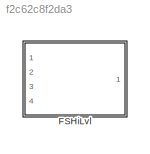
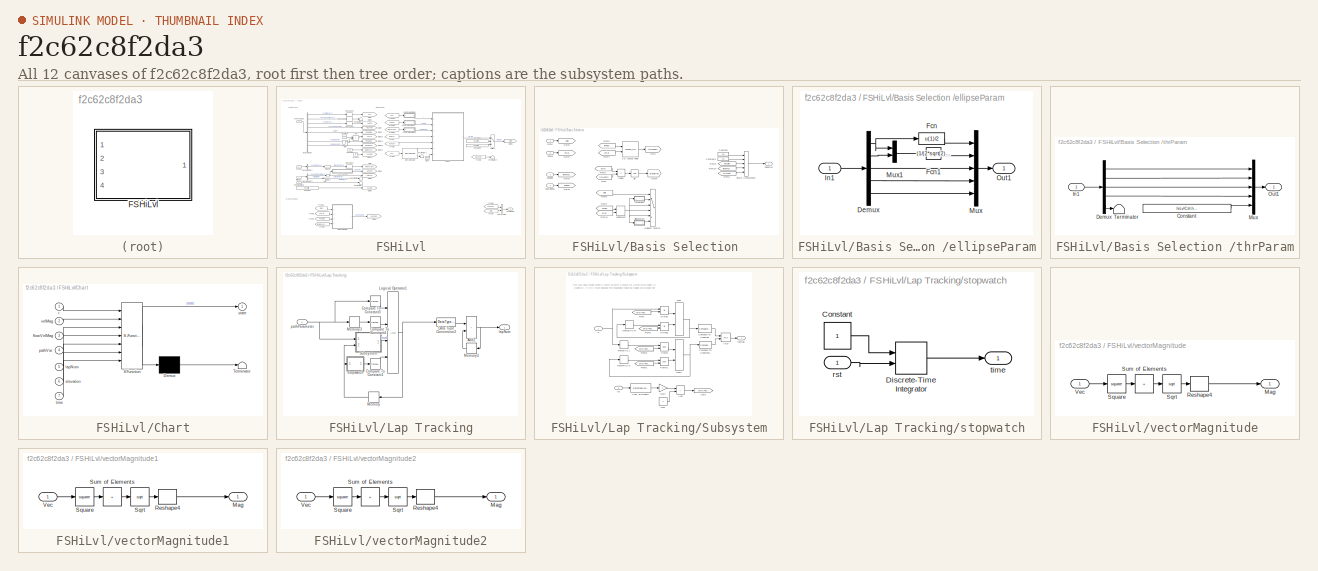
[diagram: thumbnail index - all 12 canvases of the model, root first then tree order]
MODEL slx_f2c62c8f2da3
KIND library
CONFIG AbsTol = auto
CONFIG EnableMultiTasking = off
CONFIG FixedStep = auto
CONFIG MaxStep = auto
CONFIG MinStep = auto
CONFIG RelTol = 1e-3
CONFIG SampleTimeConstraint = Unconstrained
CONFIG SolverName = VariableStepAuto
CONFIG StartTime = 0.0
CONFIG StopTime = 10.0
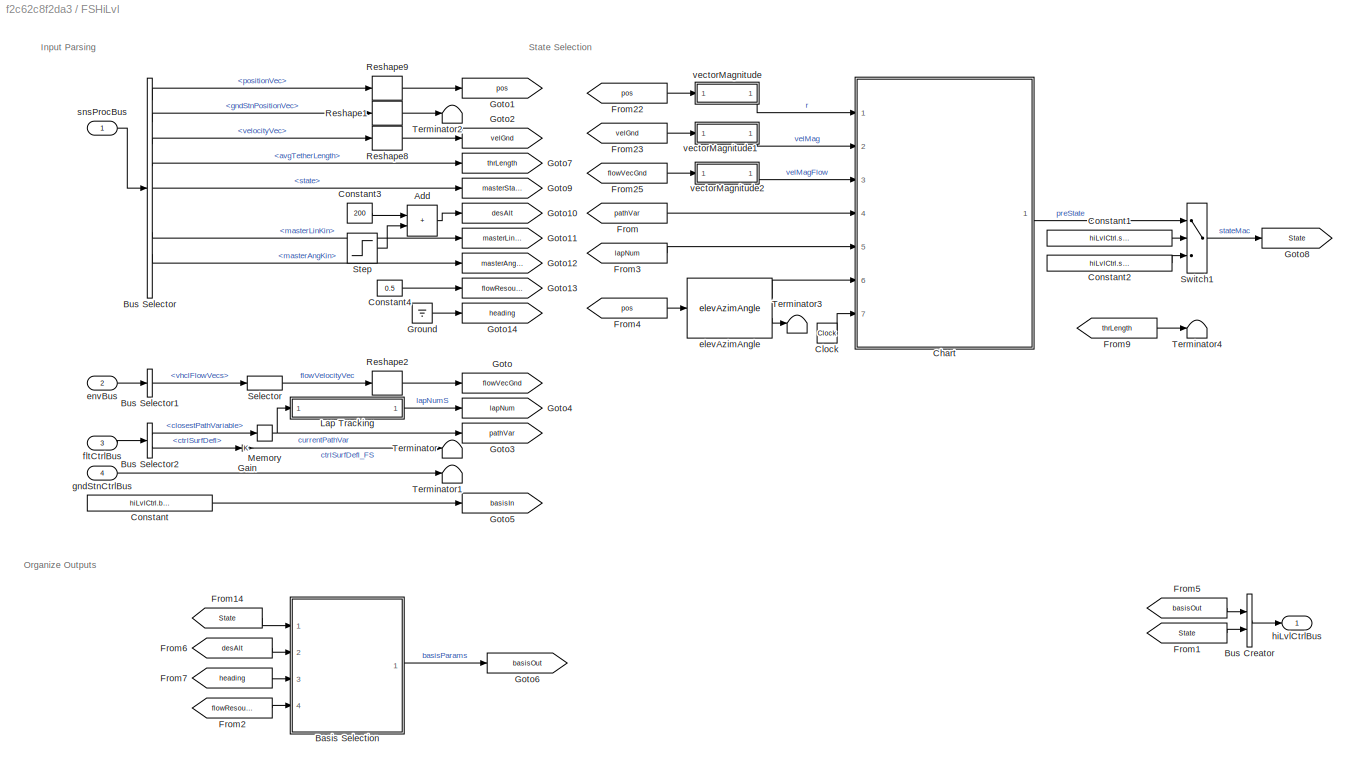
BLOCK [SubSystem] FSHiLvl
  InitFcn = initializeBussesFromBlock(gcb)
  LoadFcn = initializeBussesFromBlock(gcb)
  Ports = [4, 1]
  RequestExecContextInheritance = off
  StartFcn = initializeBussesFromBlock(gcb)
  VariantControl = strcmpi(HILVLCONTROLLER,'mantaFSHiLvl')
BLOCK [Sum] FSHiLvl/Add
  IconShape = rectangular
  Ports = [2, 1]
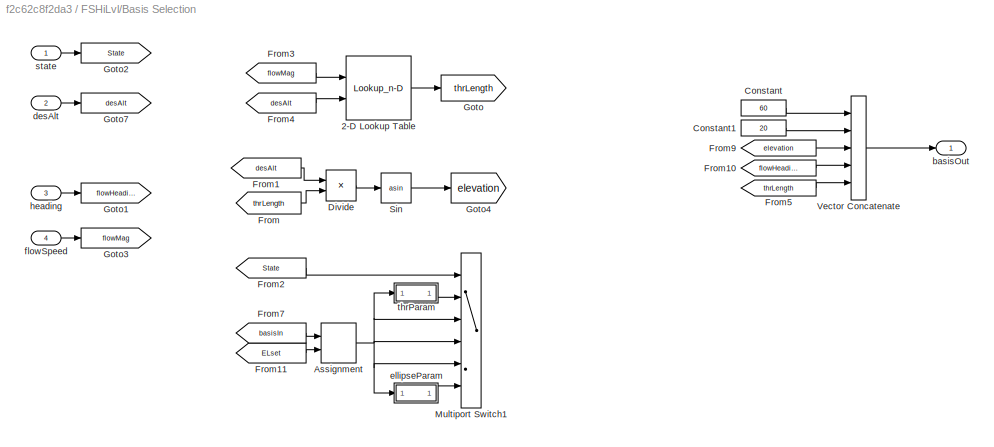
BLOCK [SubSystem] FSHiLvl/Basis Selection 
  Ports = [4, 1]
  RequestExecContextInheritance = off
BLOCK [Lookup_n-D] FSHiLvl/Basis Selection /2-D Lookup Table
  BreakpointsForDimension1 = hiLvlCtrl.flwSpdRef.Value
  BreakpointsForDimension2 = hiLvlCtrl.desisredAlt.Value
  InputPortMap = u0,u1
  InternalRulePriority = Speed
  Ports = [2, 1]
  RndMeth = Simplest
  Table = hiLvlCtrl.thrLength.Value
BLOCK [Assignment] FSHiLvl/Basis Selection /Assignment
  Commented = on
  DiagnosticForDimensions = Warning
  IndexOptions = Index vector (dialog)
  Indices = 3
  OutputSizes = 1
  Ports = [2, 1]
BLOCK [Constant] FSHiLvl/Basis Selection /Constant
  Value = 60
BLOCK [Constant] FSHiLvl/Basis Selection /Constant1
  Value = 20
BLOCK [Product] FSHiLvl/Basis Selection /Divide
  Inputs = */
  Ports = [2, 1]
BLOCK [From] FSHiLvl/Basis Selection /From
  GotoTag = thrLength
BLOCK [From] FSHiLvl/Basis Selection /From1
  GotoTag = desAlt
BLOCK [From] FSHiLvl/Basis Selection /From10
  GotoTag = flowHeading
BLOCK [From] FSHiLvl/Basis Selection /From11
  Commented = on
  GotoTag = ELset
BLOCK [From] FSHiLvl/Basis Selection /From2
  Commented = on
  GotoTag = State
BLOCK [From] FSHiLvl/Basis Selection /From3
  GotoTag = flowMag
BLOCK [From] FSHiLvl/Basis Selection /From4
  GotoTag = desAlt
BLOCK [From] FSHiLvl/Basis Selection /From5
  GotoTag = thrLength
BLOCK [From] FSHiLvl/Basis Selection /From7
  Commented = on
  GotoTag = basisIn
BLOCK [From] FSHiLvl/Basis Selection /From9
  GotoTag = elevation
BLOCK [Goto] FSHiLvl/Basis Selection /Goto
  GotoTag = thrLength
BLOCK [Goto] FSHiLvl/Basis Selection /Goto1
  GotoTag = flowHeading
BLOCK [Goto] FSHiLvl/Basis Selection /Goto2
  GotoTag = State
BLOCK [Goto] FSHiLvl/Basis Selection /Goto3
  GotoTag = flowMag
BLOCK [Goto] FSHiLvl/Basis Selection /Goto4
  GotoTag = elevation
BLOCK [Goto] FSHiLvl/Basis Selection /Goto7
  GotoTag = desAlt
BLOCK [MultiPortSwitch] FSHiLvl/Basis Selection /Multiport Switch1
  Commented = on
  InputSameDT = off
  Inputs = 5
  Ports = [6, 1]
  SaturateOnIntegerOverflow = off
BLOCK [Trigonometry] FSHiLvl/Basis Selection /Sin
  Operator = asin
  Ports = [1, 1]
BLOCK [Concatenate] FSHiLvl/Basis Selection /Vector Concatenate
  NumInputs = 5
  Ports = [5, 1]
BLOCK [Outport] FSHiLvl/Basis Selection /basisOut
BLOCK [Inport] FSHiLvl/Basis Selection /desAlt
  Port = 2
BLOCK [SubSystem] FSHiLvl/Basis Selection /ellipseParam
  Commented = on
  Ports = [1, 1]
  RequestExecContextInheritance = off
BLOCK [Demux] FSHiLvl/Basis Selection /ellipseParam/Demux
  Outputs = 5
  Ports = [1, 5]
BLOCK [Fcn] FSHiLvl/Basis Selection /ellipseParam/Fcn
  Expr = u(1)/2
BLOCK [Fcn] FSHiLvl/Basis Selection /ellipseParam/Fcn1
  Expr = (1/(2*sqrt(2)))*sqrt(-u(1)^2+sqrt((u(2)^2*(4+u(2)^2)*u(1)^4))/(u(2)^2))
BLOCK [Inport] FSHiLvl/Basis Selection /ellipseParam/In1
BLOCK [Mux] FSHiLvl/Basis Selection /ellipseParam/Mux
  DisplayOption = bar
  Inputs = 5
  Ports = [5, 1]
BLOCK [Mux] FSHiLvl/Basis Selection /ellipseParam/Mux1
  DisplayOption = bar
  Inputs = 2
  Ports = [2, 1]
BLOCK [Outport] FSHiLvl/Basis Selection /ellipseParam/Out1
BLOCK [Inport] FSHiLvl/Basis Selection /flowSpeed
  Port = 4
BLOCK [Inport] FSHiLvl/Basis Selection /heading
  Port = 3
BLOCK [Inport] FSHiLvl/Basis Selection /state
BLOCK [SubSystem] FSHiLvl/Basis Selection /thrParam
  Commented = on
  Ports = [1, 1]
  RequestExecContextInheritance = off
BLOCK [Constant] FSHiLvl/Basis Selection /thrParam/Constant
  Value = hiLvlCtrl.harvestingThrLength.Value
BLOCK [Demux] FSHiLvl/Basis Selection /thrParam/Demux
  Outputs = 5
  Ports = [1, 5]
BLOCK [Inport] FSHiLvl/Basis Selection /thrParam/In1
BLOCK [Mux] FSHiLvl/Basis Selection /thrParam/Mux
  DisplayOption = bar
  Inputs = 5
  Ports = [5, 1]
BLOCK [Outport] FSHiLvl/Basis Selection /thrParam/Out1
BLOCK [Terminator] FSHiLvl/Basis Selection /thrParam/Terminator
BLOCK [BusCreator] FSHiLvl/Bus Creator
  DisplayOption = bar
  InheritFromInputs = on
  Inputs = 2
  OutDataTypeStr = Bus: hiLvlCtrlBus
  Ports = [2, 1]
BLOCK [BusSelector] FSHiLvl/Bus Selector
  OutputSignals = positionVec,gndStnPositionVec,velocityVec,avgTetherLength,state,desAlt,masterLinKin,masterAngKin,flowResource
  Ports = [1, 9]
BLOCK [BusSelector] FSHiLvl/Bus Selector1
  OutputSignals = vhclFlowVecs
  Ports = [1, 1]
BLOCK [BusSelector] FSHiLvl/Bus Selector2
  OutputSignals = closestPathVariable,ctrlSurfDefl
  Ports = [1, 2]
BLOCK [SubSystem] FSHiLvl/Chart
  Commented = on
  ErrorFcn = Stateflow.Translate.translate
  PermitHierarchicalResolution = ExplicitOnly
  Ports = [7, 1]
  RequestExecContextInheritance = off
  SFBlockType = Chart
  TreatAsAtomicUnit = on
BLOCK [Demux] FSHiLvl/Chart/ Demux 
  Outputs = 1
  Ports = [1, 1]
BLOCK [S-Function] FSHiLvl/Chart/ SFunction 
  EnableBusSupport = off
  FunctionName = sf_sfun
  Parameters = 1,maxTL,nonXGain,preEL
  PortCounts = [7 2]
  Ports = [7, 2]
  SFcnIsStateOwnerBlock = off
  SFunctionDeploymentMode = off
  Tag = Stateflow S-Function 1
BLOCK [Terminator] FSHiLvl/Chart/ Terminator 
BLOCK [Inport] FSHiLvl/Chart/elevation
  Port = 6
BLOCK [Inport] FSHiLvl/Chart/flowVelMag
  Port = 3
BLOCK [Inport] FSHiLvl/Chart/lapNum
  Port = 5
BLOCK [Inport] FSHiLvl/Chart/pathVar
  Port = 4
BLOCK [Inport] FSHiLvl/Chart/r
BLOCK [Outport] FSHiLvl/Chart/state
BLOCK [Inport] FSHiLvl/Chart/time
  Port = 7
BLOCK [Inport] FSHiLvl/Chart/velMag
  Port = 2
BLOCK [Clock] FSHiLvl/Clock
  Commented = on
BLOCK [Constant] FSHiLvl/Constant
  Value = hiLvlCtrl.basisParams.Value
BLOCK [Constant] FSHiLvl/Constant1
  Commented = on
  Value = hiLvlCtrl.stateCtrl.Value
BLOCK [Constant] FSHiLvl/Constant2
  Commented = on
  Value = hiLvlCtrl.stateConst.Value
BLOCK [Constant] FSHiLvl/Constant3
  Value = 200
BLOCK [Constant] FSHiLvl/Constant4
  Value = 0.5
BLOCK [From] FSHiLvl/From
  Commented = on
  GotoTag = pathVar
BLOCK [From] FSHiLvl/From1
  GotoTag = State
BLOCK [From] FSHiLvl/From14
  GotoTag = State
  IconDisplay = Tag and signal name
BLOCK [From] FSHiLvl/From2
  GotoTag = flowResource
BLOCK [From] FSHiLvl/From22
  Commented = on
  GotoTag = pos
BLOCK [From] FSHiLvl/From23
  Commented = on
  GotoTag = velGnd
BLOCK [From] FSHiLvl/From25
  Commented = on
  GotoTag = flowVecGnd
BLOCK [From] FSHiLvl/From3
  Commented = on
  GotoTag = lapNum
BLOCK [From] FSHiLvl/From4
  Commented = on
  GotoTag = pos
BLOCK [From] FSHiLvl/From5
  GotoTag = basisOut
BLOCK [From] FSHiLvl/From6
  GotoTag = desAlt
BLOCK [From] FSHiLvl/From7
  GotoTag = heading
BLOCK [From] FSHiLvl/From9
  Commented = on
  GotoTag = thrLength
BLOCK [Gain] FSHiLvl/Gain
BLOCK [Goto] FSHiLvl/Goto
  GotoTag = flowVecGnd
BLOCK [Goto] FSHiLvl/Goto1
  GotoTag = pos
BLOCK [Goto] FSHiLvl/Goto10
  GotoTag = desAlt
BLOCK [Goto] FSHiLvl/Goto11
  GotoTag = masterLinKin
BLOCK [Goto] FSHiLvl/Goto12
  GotoTag = masterAngKin
BLOCK [Goto] FSHiLvl/Goto13
  GotoTag = flowResource
BLOCK [Goto] FSHiLvl/Goto14
  GotoTag = heading
BLOCK [Goto] FSHiLvl/Goto2
  GotoTag = velGnd
BLOCK [Goto] FSHiLvl/Goto3
  GotoTag = pathVar
BLOCK [Goto] FSHiLvl/Goto4
  GotoTag = lapNum
BLOCK [Goto] FSHiLvl/Goto5
  GotoTag = basisIn
BLOCK [Goto] FSHiLvl/Goto6
  GotoTag = basisOut
BLOCK [Goto] FSHiLvl/Goto7
  GotoTag = thrLength
BLOCK [Goto] FSHiLvl/Goto8
  GotoTag = State
BLOCK [Goto] FSHiLvl/Goto9
  GotoTag = masterState
BLOCK [Ground] FSHiLvl/Ground
BLOCK [SubSystem] FSHiLvl/Lap Tracking
  Ports = [1, 1]
  RequestExecContextInheritance = off
BLOCK [Sum] FSHiLvl/Lap Tracking/Add2
  IconShape = rectangular
  Ports = [2, 1]
BLOCK [Reference] FSHiLvl/Lap Tracking/Compare To Constant1  REF=simulink/Logic and Bit
Operations/Compare
To Constant
  Ports = [1, 1]
  SourceBlock = simulink/Logic and Bit\nOperations/Compare\nTo Constant
  SourceProductBaseCode = SL
  SourceType = Compare To Constant
BLOCK [Reference] FSHiLvl/Lap Tracking/Compare To Constant3  REF=simulink/Logic and Bit
Operations/Compare
To Constant
  Ports = [1, 1]
  SourceBlock = simulink/Logic and Bit\nOperations/Compare\nTo Constant
  SourceProductBaseCode = SL
  SourceType = Compare To Constant
BLOCK [Reference] FSHiLvl/Lap Tracking/Compare To Constant4  REF=simulink/Logic and Bit
Operations/Compare
To Constant
  Ports = [1, 1]
  SourceBlock = simulink/Logic and Bit\nOperations/Compare\nTo Constant
  SourceProductBaseCode = SL
  SourceType = Compare To Constant
BLOCK [DataTypeConversion] FSHiLvl/Lap Tracking/Data Type Conversion2
  OutDataTypeStr = double
  RndMeth = Floor
  SaturateOnIntegerOverflow = off
BLOCK [Logic] FSHiLvl/Lap Tracking/Logical Operator1
  AllPortsSameDT = off
  Inputs = 4
  OutDataTypeStr = boolean
  Ports = [4, 1]
BLOCK [Memory] FSHiLvl/Lap Tracking/Memory
  InitialCondition = false
BLOCK [Memory] FSHiLvl/Lap Tracking/Memory3
BLOCK [Memory] FSHiLvl/Lap Tracking/Memory4
BLOCK [SubSystem] FSHiLvl/Lap Tracking/Subsystem
  Ports = [2, 1]
  RequestExecContextInheritance = off
BLOCK [Logic] FSHiLvl/Lap Tracking/Subsystem/AND
  AllPortsSameDT = off
  OutDataTypeStr = boolean
  Ports = [2, 1]
BLOCK [Sum] FSHiLvl/Lap Tracking/Subsystem/Add
  IconShape = rectangular
  Ports = [2, 1]
BLOCK [DataTypeConversion] FSHiLvl/Lap Tracking/Subsystem/Cast To Double
  OutDataTypeStr = double
  RndMeth = Floor
  SaturateOnIntegerOverflow = off
BLOCK [Reference] FSHiLvl/Lap Tracking/Subsystem/Compare To Constant  REF=simulink/Logic and Bit
Operations/Compare
To Constant
  Ports = [1, 1]
  SourceBlock = simulink/Logic and Bit\nOperations/Compare\nTo Constant
  SourceProductBaseCode = SL
  SourceType = Compare To Constant
BLOCK [Reference] FSHiLvl/Lap Tracking/Subsystem/Compare To Constant1  REF=simulink/Logic and Bit
Operations/Compare
To Constant
  Ports = [1, 1]
  SourceBlock = simulink/Logic and Bit\nOperations/Compare\nTo Constant
  SourceProductBaseCode = SL
  SourceType = Compare To Constant
BLOCK [Product] FSHiLvl/Lap Tracking/Subsystem/Divide
  Inputs = **
  Ports = [2, 1]
BLOCK [Product] FSHiLvl/Lap Tracking/Subsystem/Divide1
  Inputs = **
  Ports = [2, 1]
BLOCK [From] FSHiLvl/Lap Tracking/Subsystem/From
  GotoTag = zeroIfReset
BLOCK [From] FSHiLvl/Lap Tracking/Subsystem/From1
  GotoTag = zeroIfReset
BLOCK [From] FSHiLvl/Lap Tracking/Subsystem/From2
  GotoTag = zeroIfReset
BLOCK [From] FSHiLvl/Lap Tracking/Subsystem/From3
  GotoTag = zeroIfReset
BLOCK [Gain] FSHiLvl/Lap Tracking/Subsystem/Gain
  Gain = -1
BLOCK [Goto] FSHiLvl/Lap Tracking/Subsystem/Goto
  GotoTag = zeroIfReset
BLOCK [MinMax] FSHiLvl/Lap Tracking/Subsystem/Max
  Function = max
  Inputs = 2
  Ports = [2, 1]
BLOCK [MinMax] FSHiLvl/Lap Tracking/Subsystem/Max1
  Inputs = 2
  Ports = [2, 1]
BLOCK [Constant] FSHiLvl/Lap Tracking/Subsystem/One
  OutDataTypeStr = Inherit: Inherit via back propagation
BLOCK [Math] FSHiLvl/Lap Tracking/Subsystem/Power
  Operator = pow
  Ports = [2, 1]
BLOCK [Math] FSHiLvl/Lap Tracking/Subsystem/Power1
  Operator = pow
  Ports = [2, 1]
BLOCK [Inport] FSHiLvl/Lap Tracking/Subsystem/S
BLOCK [Memory] FSHiLvl/Lap Tracking/Subsystem/memoryIC1
  InitialCondition = 1
BLOCK [Memory] FSHiLvl/Lap Tracking/Subsystem/memoryIC=0
BLOCK [Memory] FSHiLvl/Lap Tracking/Subsystem/memoryIC=1
  InitialCondition = 1
BLOCK [Outport] FSHiLvl/Lap Tracking/Subsystem/realLap
BLOCK [Inport] FSHiLvl/Lap Tracking/Subsystem/rst
  Port = 2
BLOCK [Outport] FSHiLvl/Lap Tracking/lapNum
  VectorParamsAs1DForOutWhenUnconnected = off
BLOCK [Inport] FSHiLvl/Lap Tracking/pathParameter
BLOCK [SubSystem] FSHiLvl/Lap Tracking/stopwatch
  AncestorBlock = stopwatch_ul/stopwatch
  Ports = [1, 1]
  RequestExecContextInheritance = off
BLOCK [Constant] FSHiLvl/Lap Tracking/stopwatch/Constant
BLOCK [DiscreteIntegrator] FSHiLvl/Lap Tracking/stopwatch/Discrete-Time Integrator
  ExternalReset = rising
  ICPrevOutput = DiscIntNeverNeededParam
  ICPrevScaledInput = DiscIntNeverNeededParam
  InitialConditionSetting = Auto
  Ports = [2, 1]
  SampleTime = -1
BLOCK [Inport] FSHiLvl/Lap Tracking/stopwatch/rst
BLOCK [Outport] FSHiLvl/Lap Tracking/stopwatch/time
  VectorParamsAs1DForOutWhenUnconnected = off
BLOCK [Memory] FSHiLvl/Memory
BLOCK [Reshape] FSHiLvl/Reshape1
  OutputDimensionality = Column vector (2-D)
  Ports = [1, 1]
BLOCK [Reshape] FSHiLvl/Reshape2
  OutputDimensionality = Column vector (2-D)
  Ports = [1, 1]
BLOCK [Reshape] FSHiLvl/Reshape8
  OutputDimensionality = Column vector (2-D)
  Ports = [1, 1]
BLOCK [Reshape] FSHiLvl/Reshape9
  OutputDimensionality = Column vector (2-D)
  Ports = [1, 1]
BLOCK [Selector] FSHiLvl/Selector
  IndexOptions = Select all,Index vector (dialog)
  Indices = [1 3],5
  InputPortWidth = 3
  NumberOfDimensions = 2
  OutputSizes = 1,1
  Ports = [1, 1]
BLOCK [Step] FSHiLvl/Step
  After = 100
  SampleTime = 0
  Time = 250
BLOCK [Switch] FSHiLvl/Switch1
  Commented = on
  Criteria = u2 > Threshold
  InputSameDT = off
  SaturateOnIntegerOverflow = off
  Threshold = .5
BLOCK [Terminator] FSHiLvl/Terminator
BLOCK [Terminator] FSHiLvl/Terminator1
BLOCK [Terminator] FSHiLvl/Terminator2
BLOCK [Terminator] FSHiLvl/Terminator3
  Commented = on
BLOCK [Terminator] FSHiLvl/Terminator4
  Commented = on
BLOCK [Reference] FSHiLvl/elevAzimAngle  REF=elevAzimAngles/elevAzimAngle
  Commented = on
  Ports = [1, 2]
  SourceBlock = elevAzimAngles/elevAzimAngle
  SourceType = SubSystem
BLOCK [Inport] FSHiLvl/envBus
  OutDataTypeStr = Bus: envBus
  Port = 2
BLOCK [Inport] FSHiLvl/fltCtrlBus
  OutDataTypeStr = Bus: fltCtrlBus
  Port = 3
BLOCK [Inport] FSHiLvl/gndStnCtrlBus
  OutDataTypeStr = Bus: gndStnCtrlBus
  Port = 4
BLOCK [Outport] FSHiLvl/hiLvlCtrlBus
  OutDataTypeStr = Bus: hiLvlCtrlBus
  VectorParamsAs1DForOutWhenUnconnected = off
BLOCK [Inport] FSHiLvl/snsProcBus
  OutDataTypeStr = Bus: sensorsProcessingBus
BLOCK [SubSystem] FSHiLvl/vectorMagnitude
  AncestorBlock = vectorMagnitude_ul/vectorMagnitude
  Commented = on
  Ports = [1, 1]
  RequestExecContextInheritance = off
BLOCK [Outport] FSHiLvl/vectorMagnitude/Mag
BLOCK [Reshape] FSHiLvl/vectorMagnitude/Reshape4
  Ports = [1, 1]
BLOCK [Sqrt] FSHiLvl/vectorMagnitude/Sqrt
BLOCK [Math] FSHiLvl/vectorMagnitude/Square
  Operator = square
  Ports = [1, 1]
BLOCK [Sum] FSHiLvl/vectorMagnitude/Sum of Elements
  IconShape = rectangular
  Inputs = +
  Ports = [1, 1]
BLOCK [Inport] FSHiLvl/vectorMagnitude/Vec
BLOCK [SubSystem] FSHiLvl/vectorMagnitude1
  AncestorBlock = vectorMagnitude_ul/vectorMagnitude
  Commented = on
  Ports = [1, 1]
  RequestExecContextInheritance = off
BLOCK [Outport] FSHiLvl/vectorMagnitude1/Mag
BLOCK [Reshape] FSHiLvl/vectorMagnitude1/Reshape4
  Ports = [1, 1]
BLOCK [Sqrt] FSHiLvl/vectorMagnitude1/Sqrt
BLOCK [Math] FSHiLvl/vectorMagnitude1/Square
  Operator = square
  Ports = [1, 1]
BLOCK [Sum] FSHiLvl/vectorMagnitude1/Sum of Elements
  IconShape = rectangular
  Inputs = +
  Ports = [1, 1]
BLOCK [Inport] FSHiLvl/vectorMagnitude1/Vec
BLOCK [SubSystem] FSHiLvl/vectorMagnitude2
  AncestorBlock = vectorMagnitude_ul/vectorMagnitude
  Commented = on
  Ports = [1, 1]
  RequestExecContextInheritance = off
BLOCK [Outport] FSHiLvl/vectorMagnitude2/Mag
BLOCK [Reshape] FSHiLvl/vectorMagnitude2/Reshape4
  Ports = [1, 1]
BLOCK [Sqrt] FSHiLvl/vectorMagnitude2/Sqrt
BLOCK [Math] FSHiLvl/vectorMagnitude2/Square
  Operator = square
  Ports = [1, 1]
BLOCK [Sum] FSHiLvl/vectorMagnitude2/Sum of Elements
  IconShape = rectangular
  Inputs = +
  Ports = [1, 1]
BLOCK [Inport] FSHiLvl/vectorMagnitude2/Vec
ANNOTATION FSHiLvl: Input Parsing
ANNOTATION FSHiLvl: Organize Outputs
ANNOTATION FSHiLvl: State Selection
ANNOTATION FSHiLvl/Lap Tracking/Subsystem: this may have issues when it starts up after a hiatus for a multicycle spool in Hopefully, it will work because the reasonable spooling ranges are already set
LINE FSHiLvl/Add:1 -> FSHiLvl/Goto10:1
LINE FSHiLvl/Basis Selection /2-D Lookup Table:1 -> FSHiLvl/Basis Selection /Goto:1
NET FSHiLvl/Basis Selection /Assignment:1 -> FSHiLvl/Basis Selection /Multiport Switch1:3, FSHiLvl/Basis Selection /Multiport Switch1:4, FSHiLvl/Basis Selection /Multiport Switch1:5, FSHiLvl/Basis Selection /ellipseParam:1, FSHiLvl/Basis Selection /thrParam:1
LINE FSHiLvl/Basis Selection /Constant1:1 -> FSHiLvl/Basis Selection /Vector Concatenate:2
LINE FSHiLvl/Basis Selection /Constant:1 -> FSHiLvl/Basis Selection /Vector Concatenate:1
LINE FSHiLvl/Basis Selection /Divide:1 -> FSHiLvl/Basis Selection /Sin:1
LINE FSHiLvl/Basis Selection /From10:1 -> FSHiLvl/Basis Selection /Vector Concatenate:4
LINE FSHiLvl/Basis Selection /From11:1 -> FSHiLvl/Basis Selection /Assignment:2
LINE FSHiLvl/Basis Selection /From1:1 -> FSHiLvl/Basis Selection /Divide:1
LINE FSHiLvl/Basis Selection /From2:1 -> FSHiLvl/Basis Selection /Multiport Switch1:1
LINE FSHiLvl/Basis Selection /From3:1 -> FSHiLvl/Basis Selection /2-D Lookup Table:1
LINE FSHiLvl/Basis Selection /From4:1 -> FSHiLvl/Basis Selection /2-D Lookup Table:2
LINE FSHiLvl/Basis Selection /From5:1 -> FSHiLvl/Basis Selection /Vector Concatenate:5
LINE FSHiLvl/Basis Selection /From7:1 -> FSHiLvl/Basis Selection /Assignment:1
LINE FSHiLvl/Basis Selection /From9:1 -> FSHiLvl/Basis Selection /Vector Concatenate:3
LINE FSHiLvl/Basis Selection /From:1 -> FSHiLvl/Basis Selection /Divide:2
LINE FSHiLvl/Basis Selection /Sin:1 -> FSHiLvl/Basis Selection /Goto4:1
LINE FSHiLvl/Basis Selection /Vector Concatenate:1 -> FSHiLvl/Basis Selection /basisOut:1
LINE FSHiLvl/Basis Selection /desAlt:1 -> FSHiLvl/Basis Selection /Goto7:1
NET FSHiLvl/Basis Selection /ellipseParam/Demux:1 -> FSHiLvl/Basis Selection /ellipseParam/Fcn:1, FSHiLvl/Basis Selection /ellipseParam/Mux1:1
LINE FSHiLvl/Basis Selection /ellipseParam/Demux:2 -> FSHiLvl/Basis Selection /ellipseParam/Mux1:2
LINE FSHiLvl/Basis Selection /ellipseParam/Demux:3 -> FSHiLvl/Basis Selection /ellipseParam/Mux:3
LINE FSHiLvl/Basis Selection /ellipseParam/Demux:4 -> FSHiLvl/Basis Selection /ellipseParam/Mux:4
LINE FSHiLvl/Basis Selection /ellipseParam/Demux:5 -> FSHiLvl/Basis Selection /ellipseParam/Mux:5
LINE FSHiLvl/Basis Selection /ellipseParam/Fcn1:1 -> FSHiLvl/Basis Selection /ellipseParam/Mux:2
LINE FSHiLvl/Basis Selection /ellipseParam/Fcn:1 -> FSHiLvl/Basis Selection /ellipseParam/Mux:1
LINE FSHiLvl/Basis Selection /ellipseParam/In1:1 -> FSHiLvl/Basis Selection /ellipseParam/Demux:1
LINE FSHiLvl/Basis Selection /ellipseParam/Mux1:1 -> FSHiLvl/Basis Selection /ellipseParam/Fcn1:1
LINE FSHiLvl/Basis Selection /ellipseParam/Mux:1 -> FSHiLvl/Basis Selection /ellipseParam/Out1:1
LINE FSHiLvl/Basis Selection /ellipseParam:1 -> FSHiLvl/Basis Selection /Multiport Switch1:6
LINE FSHiLvl/Basis Selection /flowSpeed:1 -> FSHiLvl/Basis Selection /Goto3:1
LINE FSHiLvl/Basis Selection /heading:1 -> FSHiLvl/Basis Selection /Goto1:1
LINE FSHiLvl/Basis Selection /state:1 -> FSHiLvl/Basis Selection /Goto2:1
LINE FSHiLvl/Basis Selection /thrParam/Constant:1 -> FSHiLvl/Basis Selection /thrParam/Mux:5
LINE FSHiLvl/Basis Selection /thrParam/Demux:1 -> FSHiLvl/Basis Selection /thrParam/Mux:1
LINE FSHiLvl/Basis Selection /thrParam/Demux:2 -> FSHiLvl/Basis Selection /thrParam/Mux:2
LINE FSHiLvl/Basis Selection /thrParam/Demux:3 -> FSHiLvl/Basis Selection /thrParam/Mux:3
LINE FSHiLvl/Basis Selection /thrParam/Demux:4 -> FSHiLvl/Basis Selection /thrParam/Mux:4
LINE FSHiLvl/Basis Selection /thrParam/Demux:5 -> FSHiLvl/Basis Selection /thrParam/Terminator:1
LINE FSHiLvl/Basis Selection /thrParam/In1:1 -> FSHiLvl/Basis Selection /thrParam/Demux:1
LINE FSHiLvl/Basis Selection /thrParam/Mux:1 -> FSHiLvl/Basis Selection /thrParam/Out1:1
LINE FSHiLvl/Basis Selection /thrParam:1 -> FSHiLvl/Basis Selection /Multiport Switch1:2
LINE FSHiLvl/Basis Selection :1 -> FSHiLvl/Goto6:1
LINE FSHiLvl/Bus Creator:1 -> FSHiLvl/hiLvlCtrlBus:1
LINE FSHiLvl/Bus Selector1:1 -> FSHiLvl/Selector:1
LINE FSHiLvl/Bus Selector2:1 -> FSHiLvl/Memory:1
LINE FSHiLvl/Bus Selector2:2 -> FSHiLvl/Gain:1
LINE FSHiLvl/Bus Selector:1 -> FSHiLvl/Reshape9:1
LINE FSHiLvl/Bus Selector:2 -> FSHiLvl/Reshape1:1
LINE FSHiLvl/Bus Selector:3 -> FSHiLvl/Reshape8:1
LINE FSHiLvl/Bus Selector:4 -> FSHiLvl/Goto7:1
LINE FSHiLvl/Bus Selector:5 -> FSHiLvl/Goto9:1
LINE FSHiLvl/Bus Selector:7 -> FSHiLvl/Goto11:1
LINE FSHiLvl/Bus Selector:8 -> FSHiLvl/Goto12:1
LINE FSHiLvl/Chart:1 -> FSHiLvl/Switch1:1
LINE FSHiLvl/Clock:1 -> FSHiLvl/Chart:7
LINE FSHiLvl/Constant1:1 -> FSHiLvl/Switch1:2
LINE FSHiLvl/Constant2:1 -> FSHiLvl/Switch1:3
LINE FSHiLvl/Constant3:1 -> FSHiLvl/Add:1
LINE FSHiLvl/Constant4:1 -> FSHiLvl/Goto13:1
LINE FSHiLvl/Constant:1 -> FSHiLvl/Goto5:1
LINE FSHiLvl/From14:1 -> FSHiLvl/Basis Selection :1
LINE FSHiLvl/From1:1 -> FSHiLvl/Bus Creator:2
LINE FSHiLvl/From22:1 -> FSHiLvl/vectorMagnitude:1
LINE FSHiLvl/From23:1 -> FSHiLvl/vectorMagnitude1:1
LINE FSHiLvl/From25:1 -> FSHiLvl/vectorMagnitude2:1
LINE FSHiLvl/From2:1 -> FSHiLvl/Basis Selection :4
LINE FSHiLvl/From3:1 -> FSHiLvl/Chart:5
LINE FSHiLvl/From4:1 -> FSHiLvl/elevAzimAngle:1
LINE FSHiLvl/From5:1 -> FSHiLvl/Bus Creator:1
LINE FSHiLvl/From6:1 -> FSHiLvl/Basis Selection :2
LINE FSHiLvl/From7:1 -> FSHiLvl/Basis Selection :3
LINE FSHiLvl/From9:1 -> FSHiLvl/Terminator4:1
LINE FSHiLvl/From:1 -> FSHiLvl/Chart:4
LINE FSHiLvl/Gain:1 -> FSHiLvl/Terminator:1
LINE FSHiLvl/Ground:1 -> FSHiLvl/Goto14:1
NET FSHiLvl/Lap Tracking/Add2:1 -> FSHiLvl/Lap Tracking/Memory4:1, FSHiLvl/Lap Tracking/lapNum:1
LINE FSHiLvl/Lap Tracking/Compare To Constant1:1 -> FSHiLvl/Lap Tracking/Logical Operator1:4
LINE FSHiLvl/Lap Tracking/Compare To Constant3:1 -> FSHiLvl/Lap Tracking/Logical Operator1:1
LINE FSHiLvl/Lap Tracking/Compare To Constant4:1 -> FSHiLvl/Lap Tracking/Logical Operator1:2
LINE FSHiLvl/Lap Tracking/Data Type Conversion2:1 -> FSHiLvl/Lap Tracking/Add2:1
NET FSHiLvl/Lap Tracking/Logical Operator1:1 -> FSHiLvl/Lap Tracking/Data Type Conversion2:1, FSHiLvl/Lap Tracking/Memory:1
LINE FSHiLvl/Lap Tracking/Memory3:1 -> FSHiLvl/Lap Tracking/Compare To Constant4:1
LINE FSHiLvl/Lap Tracking/Memory4:1 -> FSHiLvl/Lap Tracking/Add2:2
NET FSHiLvl/Lap Tracking/Memory:1 -> FSHiLvl/Lap Tracking/Subsystem:2, FSHiLvl/Lap Tracking/stopwatch:1
LINE FSHiLvl/Lap Tracking/Subsystem/AND:1 -> FSHiLvl/Lap Tracking/Subsystem/realLap:1
LINE FSHiLvl/Lap Tracking/Subsystem/Add:1 -> FSHiLvl/Lap Tracking/Subsystem/Goto:1
LINE FSHiLvl/Lap Tracking/Subsystem/Cast To Double:1 -> FSHiLvl/Lap Tracking/Subsystem/Gain:1
LINE FSHiLvl/Lap Tracking/Subsystem/Compare To Constant1:1 -> FSHiLvl/Lap Tracking/Subsystem/AND:2
LINE FSHiLvl/Lap Tracking/Subsystem/Compare To Constant:1 -> FSHiLvl/Lap Tracking/Subsystem/AND:1
LINE FSHiLvl/Lap Tracking/Subsystem/Divide1:1 -> FSHiLvl/Lap Tracking/Subsystem/Max:2
LINE FSHiLvl/Lap Tracking/Subsystem/Divide:1 -> FSHiLvl/Lap Tracking/Subsystem/Max:1
LINE FSHiLvl/Lap Tracking/Subsystem/From1:1 -> FSHiLvl/Lap Tracking/Subsystem/Divide1:2
LINE FSHiLvl/Lap Tracking/Subsystem/From2:1 -> FSHiLvl/Lap Tracking/Subsystem/Power1:2
LINE FSHiLvl/Lap Tracking/Subsystem/From3:1 -> FSHiLvl/Lap Tracking/Subsystem/Power:2
LINE FSHiLvl/Lap Tracking/Subsystem/From:1 -> FSHiLvl/Lap Tracking/Subsystem/Divide:2
LINE FSHiLvl/Lap Tracking/Subsystem/Gain:1 -> FSHiLvl/Lap Tracking/Subsystem/Add:1
NET FSHiLvl/Lap Tracking/Subsystem/Max1:1 -> FSHiLvl/Lap Tracking/Subsystem/Compare To Constant1:1, FSHiLvl/Lap Tracking/Subsystem/memoryIC=1:1
NET FSHiLvl/Lap Tracking/Subsystem/Max:1 -> FSHiLvl/Lap Tracking/Subsystem/Compare To Constant:1, FSHiLvl/Lap Tracking/Subsystem/memoryIC=0:1
LINE FSHiLvl/Lap Tracking/Subsystem/One:1 -> FSHiLvl/Lap Tracking/Subsystem/Add:2
LINE FSHiLvl/Lap Tracking/Subsystem/Power1:1 -> FSHiLvl/Lap Tracking/Subsystem/Max1:2
LINE FSHiLvl/Lap Tracking/Subsystem/Power:1 -> FSHiLvl/Lap Tracking/Subsystem/Max1:1
NET FSHiLvl/Lap Tracking/Subsystem/S:1 -> FSHiLvl/Lap Tracking/Subsystem/Divide:1, FSHiLvl/Lap Tracking/Subsystem/memoryIC1:1
LINE FSHiLvl/Lap Tracking/Subsystem/memoryIC1:1 -> FSHiLvl/Lap Tracking/Subsystem/Power:1
LINE FSHiLvl/Lap Tracking/Subsystem/memoryIC=0:1 -> FSHiLvl/Lap Tracking/Subsystem/Divide1:1
LINE FSHiLvl/Lap Tracking/Subsystem/memoryIC=1:1 -> FSHiLvl/Lap Tracking/Subsystem/Power1:1
LINE FSHiLvl/Lap Tracking/Subsystem/rst:1 -> FSHiLvl/Lap Tracking/Subsystem/Cast To Double:1
LINE FSHiLvl/Lap Tracking/Subsystem:1 -> FSHiLvl/Lap Tracking/Logical Operator1:3
NET FSHiLvl/Lap Tracking/pathParameter:1 -> FSHiLvl/Lap Tracking/Compare To Constant3:1, FSHiLvl/Lap Tracking/Memory3:1, FSHiLvl/Lap Tracking/Subsystem:1
LINE FSHiLvl/Lap Tracking/stopwatch:1 -> FSHiLvl/Lap Tracking/Compare To Constant1:1
LINE FSHiLvl/Lap Tracking:1 -> FSHiLvl/Goto4:1
NET FSHiLvl/Memory:1 -> FSHiLvl/Goto3:1, FSHiLvl/Lap Tracking:1
LINE FSHiLvl/Reshape1:1 -> FSHiLvl/Terminator2:1
LINE FSHiLvl/Reshape2:1 -> FSHiLvl/Goto:1
LINE FSHiLvl/Reshape8:1 -> FSHiLvl/Goto2:1
LINE FSHiLvl/Reshape9:1 -> FSHiLvl/Goto1:1
LINE FSHiLvl/Selector:1 -> FSHiLvl/Reshape2:1
LINE FSHiLvl/Step:1 -> FSHiLvl/Add:2
LINE FSHiLvl/Switch1:1 -> FSHiLvl/Goto8:1
LINE FSHiLvl/elevAzimAngle:1 -> FSHiLvl/Chart:6
LINE FSHiLvl/elevAzimAngle:2 -> FSHiLvl/Terminator3:1
LINE FSHiLvl/envBus:1 -> FSHiLvl/Bus Selector1:1
LINE FSHiLvl/fltCtrlBus:1 -> FSHiLvl/Bus Selector2:1
LINE FSHiLvl/gndStnCtrlBus:1 -> FSHiLvl/Terminator1:1
LINE FSHiLvl/snsProcBus:1 -> FSHiLvl/Bus Selector:1
LINE FSHiLvl/vectorMagnitude1:1 -> FSHiLvl/Chart:2
LINE FSHiLvl/vectorMagnitude2:1 -> FSHiLvl/Chart:3
LINE FSHiLvl/vectorMagnitude:1 -> FSHiLvl/Chart:1
note: NET lines group one-source signal fan-out (src -> all destinations, sorted); 1:1 wires keep LINE
CHART FSHiLvl/Chart states=4 transitions=5
  STATE_LABEL 'init\nstate = 2;'
  STATE_LABEL 'non_x\nstate = 1;\n'
  STATE_LABEL 'exit\nstate = 4;'
  STATE_LABEL 'cross\nstate = 3;\n'
CHART  states=0 transitions=0
